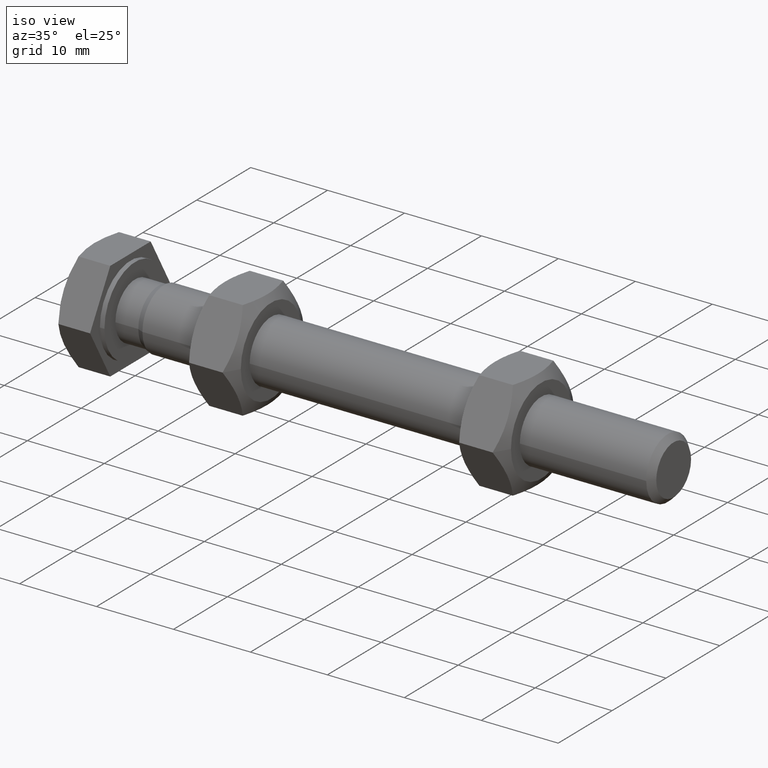
[diagram: clean part render]
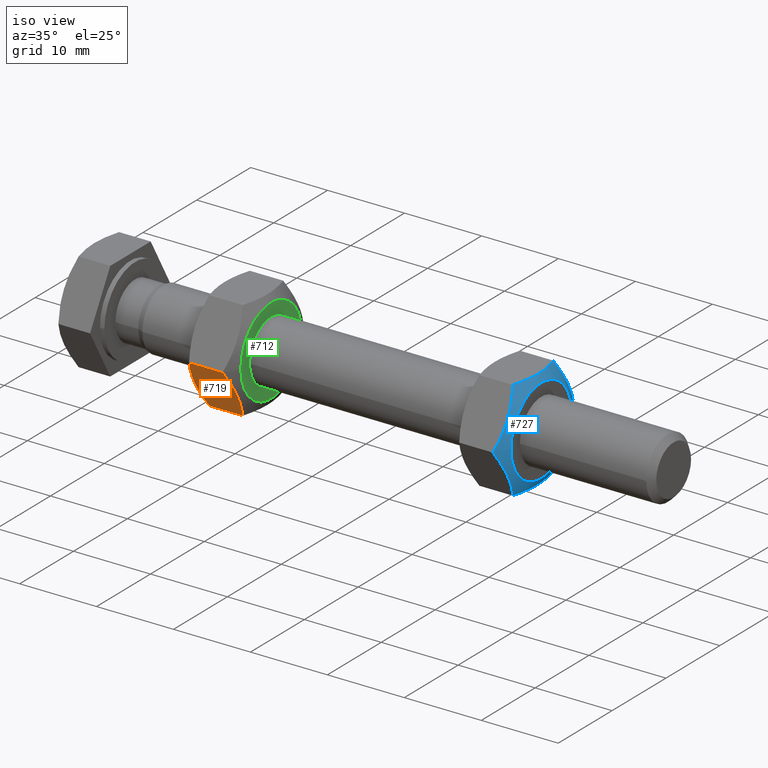
[diagram: same view with three faces highlighted in distinct colors, each labeled with its STEP entity id]
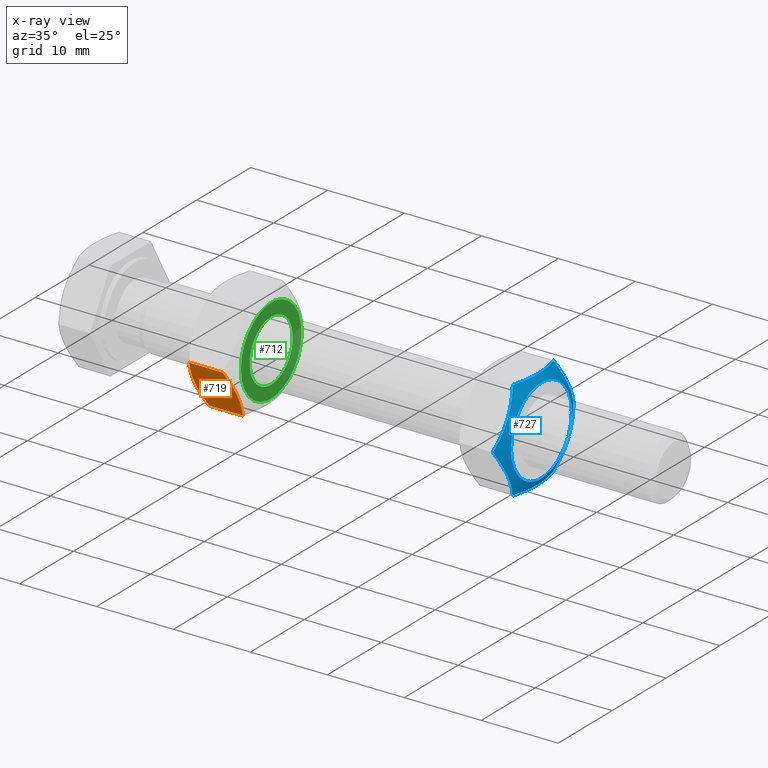
[diagram: x-ray of the same camera — body ghosted, the three highlighted faces saturated]
A machine part, iso view with three faces highlighted in distinct colors.
The next image is the same camera in x-ray (body ghosted, the three faces saturated) — at least one of them is partly hidden behind the body in this view.
Their STEP definitions:

[orange] entity #719 — the highlighted planar face has unit normal (0, -0.866, -0.5).
#41=(
BOUNDED_CURVE()
B_SPLINE_CURVE(2,(#1181,#1182,#1183),.UNSPECIFIED.,.F.,.F.)
B_SPLINE_CURVE_WITH_KNOTS((3,3),(0.,0.759483489750649),.UNSPECIFIED.)
CURVE()
GEOMETRIC_REPRESENTATION_ITEM()
RATIONAL_B_SPLINE_CURVE((1.,1.15470053837925,1.))
REPRESENTATION_ITEM('')
);
#46=(
BOUNDED_CURVE()
B_SPLINE_CURVE(2,(#1204,#1205,#1206),.UNSPECIFIED.,.F.,.F.)
B_SPLINE_CURVE_WITH_KNOTS((3,3),(0.,0.759483489750648),.UNSPECIFIED.)
CURVE()
GEOMETRIC_REPRESENTATION_ITEM()
RATIONAL_B_SPLINE_CURVE((1.,1.15470053837926,1.))
REPRESENTATION_ITEM('')
);
#77=PLANE('',#812);
#124=FACE_OUTER_BOUND('',#175,.T.);
#175=EDGE_LOOP('',(#603,#604,#605,#606));
#216=LINE('',#1218,#255);
#219=LINE('',#1224,#258);
#255=VECTOR('',#962,10.);
#258=VECTOR('',#971,10.);
#335=VERTEX_POINT('',#1176);
#336=VERTEX_POINT('',#1180);
#340=VERTEX_POINT('',#1198);
#341=VERTEX_POINT('',#1203);
#419=EDGE_CURVE('',#336,#335,#41,.T.);
#426=EDGE_CURVE('',#341,#340,#46,.T.);
#431=EDGE_CURVE('',#335,#341,#216,.T.);
#434=EDGE_CURVE('',#336,#340,#219,.T.);
#603=ORIENTED_EDGE('',*,*,#419,.T.);
#604=ORIENTED_EDGE('',*,*,#431,.T.);
#605=ORIENTED_EDGE('',*,*,#426,.T.);
#606=ORIENTED_EDGE('',*,*,#434,.F.);
#719=ADVANCED_FACE('',(#124),#77,.T.);
#812=AXIS2_PLACEMENT_3D('',#1223,#969,#970);
#962=DIRECTION('',(1.,0.,0.));
#969=DIRECTION('center_axis',(0.,-0.866025403784438,-0.500000000000001));
#970=DIRECTION('ref_axis',(-1.,0.,0.));
#971=DIRECTION('',(1.,0.,0.));
#1176=CARTESIAN_POINT('',(12.2655697392577,-3.75277674973254,-6.50000000000002));
#1180=CARTESIAN_POINT('',(12.2655697392577,-7.50555349946514,3.33066907387547E-15));
#1181=CARTESIAN_POINT('Ctrl Pts',(12.2655697392577,-7.50555349946513,2.53363366520486E-15));
#1182=CARTESIAN_POINT('Ctrl Pts',(11.1822364059244,-5.62916512459884,-3.25));
#1183=CARTESIAN_POINT('Ctrl Pts',(12.2655697392577,-3.75277674973255,-6.50000000000001));
#1198=CARTESIAN_POINT('',(16.6229611144338,-7.50555349946514,3.33066907387547E-15));
#1203=CARTESIAN_POINT('',(16.6229611144338,-3.75277674973254,-6.50000000000002));
#1204=CARTESIAN_POINT('Ctrl Pts',(16.6229611144338,-3.75277674973256,-6.5));
#1205=CARTESIAN_POINT('Ctrl Pts',(17.7062944477672,-5.62916512459884,-3.25));
#1206=CARTESIAN_POINT('Ctrl Pts',(16.6229611144338,-7.50555349946513,-2.53363366520486E-15));
#1218=CARTESIAN_POINT('',(11.1942654268458,-3.75277674973255,-6.50000000000002));
#1223=CARTESIAN_POINT('Origin',(11.1942654268458,-3.75277674973255,-6.50000000000002));
#1224=CARTESIAN_POINT('',(11.1942654268458,-7.50555349946513,8.14492409938759E-16));

[blue] entity #727 — the highlighted conical surface has half-angle 60 deg.
#55=(
BOUNDED_CURVE()
B_SPLINE_CURVE(2,(#1277,#1278,#1279),.UNSPECIFIED.,.F.,.F.)
B_SPLINE_CURVE_WITH_KNOTS((3,3),(0.,0.759483489750647),.UNSPECIFIED.)
CURVE()
GEOMETRIC_REPRESENTATION_ITEM()
RATIONAL_B_SPLINE_CURVE((1.,1.15470053837925,1.))
REPRESENTATION_ITEM('')
);
#56=(
BOUNDED_CURVE()
B_SPLINE_CURVE(2,(#1281,#1282,#1283),.UNSPECIFIED.,.F.,.F.)
B_SPLINE_CURVE_WITH_KNOTS((3,3),(0.,0.759483489750647),.UNSPECIFIED.)
CURVE()
GEOMETRIC_REPRESENTATION_ITEM()
RATIONAL_B_SPLINE_CURVE((1.,1.15470053837925,1.))
REPRESENTATION_ITEM('')
);
#57=(
BOUNDED_CURVE()
B_SPLINE_CURVE(2,(#1285,#1286,#1287),.UNSPECIFIED.,.F.,.F.)
B_SPLINE_CURVE_WITH_KNOTS((3,3),(0.,0.759483489750646),.UNSPECIFIED.)
CURVE()
GEOMETRIC_REPRESENTATION_ITEM()
RATIONAL_B_SPLINE_CURVE((1.,1.15470053837924,1.))
REPRESENTATION_ITEM('')
);
#58=(
BOUNDED_CURVE()
B_SPLINE_CURVE(2,(#1290,#1291,#1292),.UNSPECIFIED.,.F.,.F.)
B_SPLINE_CURVE_WITH_KNOTS((3,3),(0.,0.759483489750648),.UNSPECIFIED.)
CURVE()
GEOMETRIC_REPRESENTATION_ITEM()
RATIONAL_B_SPLINE_CURVE((1.,1.15470053837926,1.))
REPRESENTATION_ITEM('')
);
#59=(
BOUNDED_CURVE()
B_SPLINE_CURVE(2,(#1294,#1295,#1296),.UNSPECIFIED.,.F.,.F.)
B_SPLINE_CURVE_WITH_KNOTS((3,3),(0.,0.759483489750643),.UNSPECIFIED.)
CURVE()
GEOMETRIC_REPRESENTATION_ITEM()
RATIONAL_B_SPLINE_CURVE((1.,1.15470053837925,1.))
REPRESENTATION_ITEM('')
);
#60=(
BOUNDED_CURVE()
B_SPLINE_CURVE(2,(#1297,#1298,#1299),.UNSPECIFIED.,.F.,.F.)
B_SPLINE_CURVE_WITH_KNOTS((3,3),(0.,0.759483489750644),.UNSPECIFIED.)
CURVE()
GEOMETRIC_REPRESENTATION_ITEM()
RATIONAL_B_SPLINE_CURVE((1.,1.15470053837925,1.))
REPRESENTATION_ITEM('')
);
#132=FACE_OUTER_BOUND('',#185,.T.);
#185=EDGE_LOOP('',(#638,#639,#640,#641,#642,#643,#644,#645,#646));
#224=LINE('',#1288,#263);
#263=VECTOR('',#1006,6.57777674973257);
#297=CIRCLE('',#825,5.65);
#349=VERTEX_POINT('',#1246);
#356=VERTEX_POINT('',#1275);
#357=VERTEX_POINT('',#1276);
#358=VERTEX_POINT('',#1280);
#359=VERTEX_POINT('',#1284);
#360=VERTEX_POINT('',#1289);
#361=VERTEX_POINT('',#1293);
#444=EDGE_CURVE('',#349,#349,#297,.T.);
#452=EDGE_CURVE('',#356,#357,#55,.T.);
#453=EDGE_CURVE('',#358,#356,#56,.T.);
#454=EDGE_CURVE('',#359,#358,#57,.T.);
#455=EDGE_CURVE('',#359,#349,#224,.T.);
#456=EDGE_CURVE('',#360,#359,#58,.T.);
#457=EDGE_CURVE('',#361,#360,#59,.T.);
#458=EDGE_CURVE('',#357,#361,#60,.T.);
#638=ORIENTED_EDGE('',*,*,#452,.F.);
#639=ORIENTED_EDGE('',*,*,#453,.F.);
#640=ORIENTED_EDGE('',*,*,#454,.F.);
#641=ORIENTED_EDGE('',*,*,#455,.T.);
#642=ORIENTED_EDGE('',*,*,#444,.F.);
#643=ORIENTED_EDGE('',*,*,#455,.F.);
#644=ORIENTED_EDGE('',*,*,#456,.F.);
#645=ORIENTED_EDGE('',*,*,#457,.F.);
#646=ORIENTED_EDGE('',*,*,#458,.F.);
#686=CONICAL_SURFACE('',#827,6.57777674973257,1.0471975511966);
#727=ADVANCED_FACE('',(#132),#686,.T.);
#825=AXIS2_PLACEMENT_3D('',#1247,#999,#1000);
#827=AXIS2_PLACEMENT_3D('',#1274,#1004,#1005);
#999=DIRECTION('center_axis',(1.,0.,0.));
#1000=DIRECTION('ref_axis',(0.,1.,0.));
#1004=DIRECTION('center_axis',(-1.,0.,0.));
#1005=DIRECTION('ref_axis',(0.,1.,0.));
#1006=DIRECTION('',(0.5,0.866025403784439,-1.06057523872491E-16));
#1246=CARTESIAN_POINT('',(52.8051378196226,-5.65,6.91925441518255E-16));
#1247=CARTESIAN_POINT('Origin',(52.8051378196226,4.44089209850063E-15,0.));
#1274=CARTESIAN_POINT('Origin',(52.2694856634166,4.44089209850063E-15,0.));
#1275=CARTESIAN_POINT('',(51.7338335072106,3.75277674973257,6.5));
#1276=CARTESIAN_POINT('',(51.7338335072106,7.50555349946513,0.));
#1277=CARTESIAN_POINT('Ctrl Pts',(51.7338335072106,3.75277674973256,6.5));
#1278=CARTESIAN_POINT('Ctrl Pts',(52.817166840544,5.62916512459886,3.25));
#1279=CARTESIAN_POINT('Ctrl Pts',(51.7338335072106,7.50555349946513,5.70067574671093E-15));
#1280=CARTESIAN_POINT('',(51.7338335072106,-3.75277674973257,6.5));
#1281=CARTESIAN_POINT('Ctrl Pts',(51.7338335072106,-3.75277674973257,6.5));
#1282=CARTESIAN_POINT('Ctrl Pts',(52.817166840544,4.44089209850063E-15,
6.5));
#1283=CARTESIAN_POINT('Ctrl Pts',(51.7338335072106,3.75277674973257,6.5));
#1284=CARTESIAN_POINT('',(51.7338335072106,-7.50555349946514,3.33066907387547E-15));
#1285=CARTESIAN_POINT('Ctrl Pts',(51.7338335072106,-7.50555349946513,1.90022524890364E-15));
#1286=CARTESIAN_POINT('Ctrl Pts',(52.817166840544,-5.62916512459885,3.25));
#1287=CARTESIAN_POINT('Ctrl Pts',(51.7338335072106,-3.75277674973257,6.5));
#1288=CARTESIAN_POINT('',(52.2694856634166,-6.57777674973257,8.05545324206587E-16));
#1289=CARTESIAN_POINT('',(51.7338335072106,-3.75277674973254,-6.50000000000002));
#1290=CARTESIAN_POINT('Ctrl Pts',(51.7338335072106,-3.75277674973256,-6.5));
#1291=CARTESIAN_POINT('Ctrl Pts',(52.817166840544,-5.62916512459884,-3.25));
#1292=CARTESIAN_POINT('Ctrl Pts',(51.7338335072106,-7.50555349946513,-2.53363366520486E-15));
#1293=CARTESIAN_POINT('',(51.7338335072106,3.7527767497326,-6.49999999999999));
#1294=CARTESIAN_POINT('Ctrl Pts',(51.7338335072106,3.75277674973256,-6.5));
#1295=CARTESIAN_POINT('Ctrl Pts',(52.817166840544,1.94289029309402E-14,
-6.50000000000001));
#1296=CARTESIAN_POINT('Ctrl Pts',(51.7338335072106,-3.75277674973253,-6.50000000000002));
#1297=CARTESIAN_POINT('Ctrl Pts',(51.7338335072106,7.50555349946513,-3.16704208150607E-15));
#1298=CARTESIAN_POINT('Ctrl Pts',(52.817166840544,5.62916512459886,-3.25));
#1299=CARTESIAN_POINT('Ctrl Pts',(51.7338335072106,3.7527767497326,-6.49999999999999));

[green] entity #712 — the highlighted planar face has unit normal (1, 0, 0).
#22=FACE_BOUND('',#168,.T.);
#72=PLANE('',#804);
#117=FACE_OUTER_BOUND('',#167,.T.);
#167=EDGE_LOOP('',(#567));
#168=EDGE_LOOP('',(#568));
#289=CIRCLE('',#803,4.00008234670659);
#290=CIRCLE('',#805,5.65);
#329=VERTEX_POINT('',#1156);
#330=VERTEX_POINT('',#1160);
#413=EDGE_CURVE('',#329,#329,#289,.T.);
#414=EDGE_CURVE('',#330,#330,#290,.T.);
#567=ORIENTED_EDGE('',*,*,#414,.T.);
#568=ORIENTED_EDGE('',*,*,#413,.F.);
#712=ADVANCED_FACE('',(#117,#22),#72,.T.);
#803=AXIS2_PLACEMENT_3D('',#1158,#944,#945);
#804=AXIS2_PLACEMENT_3D('',#1159,#946,#947);
#805=AXIS2_PLACEMENT_3D('',#1161,#948,#949);
#944=DIRECTION('center_axis',(1.,0.,0.));
#945=DIRECTION('ref_axis',(0.,0.,1.));
#946=DIRECTION('center_axis',(1.,0.,0.));
#947=DIRECTION('ref_axis',(0.,0.,-1.));
#948=DIRECTION('center_axis',(1.,0.,0.));
#949=DIRECTION('ref_axis',(0.,1.,0.));
#1156=CARTESIAN_POINT('',(17.6942654268458,4.89852625758962E-16,-4.00008234670659));
#1158=CARTESIAN_POINT('Origin',(17.6942654268458,0.,0.));
#1159=CARTESIAN_POINT('Origin',(17.6942654268458,7.56970244062607E-16,-3.7470027081099E-15));
#1160=CARTESIAN_POINT('',(17.6942654268458,-5.65,6.91925441518255E-16));
#1161=CARTESIAN_POINT('Origin',(17.6942654268458,0.,0.));